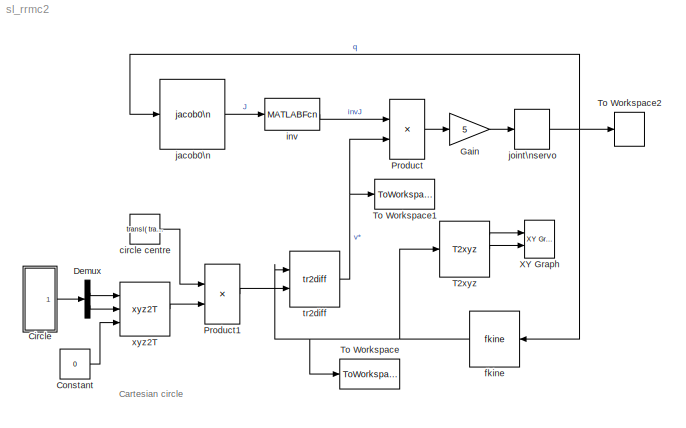
MODEL sl_rrmc2
KIND model
CONFIG PreLoadFcn = fprintf('*** Loading Puma560 model to workspace\\n');\nmdl_puma560
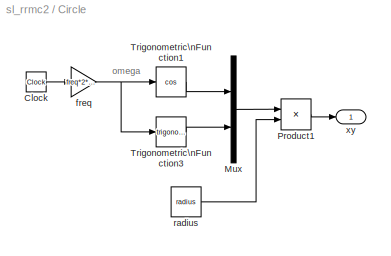
BLOCK [SubSystem] Circle
  FunctionWithSeparateData = off
  MaskCallbackString = |
  MaskEnableString = on,on
  MaskHideContents = off
  MaskIconFrame = on
  MaskIconOpaque = on
  MaskIconRotate = none
  MaskIconUnits = autoscale
  MaskPortRotate = default
  MaskPromptString = Radius|Frequency (rev/s)
  MaskStyleString = edit,edit
  MaskToolTipString = on,on
  MaskTunableValueString = on,on
  MaskValueString = 0.05|0.2
  MaskVariables = radius=@1;freq=@2;
  MaskVisibilityString = on,on
  MinAlgLoopOccurrences = off
  Opaque = off
  Ports = [0, 1]
  PropExecContextOutsideSubsystem = off
  RTWSystemCode = Auto
  RequestExecContextInheritance = off
  SID = 1
BLOCK [Clock] Circle/Clock
  Decimation = 10
  SID = 2
BLOCK [Mux] Circle/Mux
  DisplayOption = bar
  Inputs = 2
  Ports = [2, 1]
  SID = 3
BLOCK [Product] Circle/Product1
  InputSameDT = off
  Multiplication = Matrix(*)
  OutDataTypeStr = Inherit: Inherit via internal rule
  Ports = [2, 1]
  SID = 4
  SaturateOnIntegerOverflow = off
BLOCK [Trigonometry] Circle/Trigonometric\nFunction1
  Operator = cos
  Ports = [1, 1]
  SID = 5
BLOCK [Trigonometry] Circle/Trigonometric\nFunction3
  Ports = [1, 1]
  SID = 6
BLOCK [Gain] Circle/freq
  Gain = freq*2*pi
  OutDataTypeStr = Inherit: Inherit via internal rule
  ParamDataTypeStr = Inherit: Inherit via internal rule
  SID = 7
  SaturateOnIntegerOverflow = off
BLOCK [Constant] Circle/radius
  SID = 8
  Value = radius
BLOCK [Outport] Circle/xy
  IconDisplay = Port number
  SID = 9
BLOCK [Constant] Constant
  SID = 10
  Value = 0
BLOCK [Demux] Demux
  DisplayOption = bar
  Outputs = 2
  Ports = [1, 2]
  SID = 11
BLOCK [Gain] Gain
  Gain = 5
  SID = 13
BLOCK [Product] Product
  Multiplication = Matrix(*)
  Ports = [2, 1]
  SID = 14
BLOCK [Product] Product1
  Multiplication = Matrix(*)
  Ports = [2, 1]
  SID = 23
BLOCK [Reference] T2xyz  REF=roblocks/Transform Conversion/T2xyz  (lib defined in mdl_2a292b13c81b, mdl_69400f8cfe22, +12 more)
  FunctionWithSeparateData = off
  GeneratePreprocessorConditionals = off
  Ports = [1, 3]
  RTWMemSecDataConstants = Inherit from model
  RTWMemSecDataInternal = Inherit from model
  RTWMemSecDataParameters = Inherit from model
  RTWMemSecFuncExecute = Inherit from model
  RTWMemSecFuncInitTerm = Inherit from model
  SID = 15
  ShowPortLabels = FromPortIcon
  SourceBlock = roblocks/Transform Conversion/T2xyz
  SystemSampleTime = -1
BLOCK [ToWorkspace] To Workspace
  MaxDataPoints = inf
  Ports = [1]
  SID = 25
  SampleTime = -1
  SaveFormat = Array
  VariableName = T
BLOCK [ToWorkspace] To Workspace1
  MaxDataPoints = inf
  Ports = [1]
  SID = 28
  SampleTime = -1
  SaveFormat = Array
  VariableName = v
BLOCK [ToWorkspace] To Workspace2
  MaxDataPoints = inf
  Ports = [1]
  SID = 29
  SampleTime = -1
  SaveFormat = Array
  VariableName = q
BLOCK [Reference] XY Graph  REF=simulink/Sinks/XY Graph
  FunctionWithSeparateData = off
  GeneratePreprocessorConditionals = off
  Ports = [2]
  RTWMemSecDataConstants = Inherit from model
  RTWMemSecDataInternal = Inherit from model
  RTWMemSecDataParameters = Inherit from model
  RTWMemSecFuncExecute = Inherit from model
  RTWMemSecFuncInitTerm = Inherit from model
  SID = 16
  ShowPortLabels = FromPortIcon
  SourceBlock = simulink/Sinks/XY Graph
  SourceType = XY scope.
  SystemSampleTime = -1
  st = -1
  xmax = 0.7
  xmin = 0.5
  ymax = -0.05
  ymin = -0.25
BLOCK [Constant] circle centre
  SID = 24
  Value = transl( transl(p560.fkine(qn)) )
BLOCK [Reference] fkine  REF=roblocks/Kinematics/fkine  (lib defined in mdl_2a292b13c81b, mdl_69400f8cfe22, +12 more)
  FunctionWithSeparateData = off
  GeneratePreprocessorConditionals = off
  Ports = [1, 1]
  RTWMemSecDataConstants = Inherit from model
  RTWMemSecDataInternal = Inherit from model
  RTWMemSecDataParameters = Inherit from model
  RTWMemSecFuncExecute = Inherit from model
  RTWMemSecFuncInitTerm = Inherit from model
  SID = 17
  ShowPortLabels = FromPortIcon
  SourceBlock = roblocks/Kinematics/fkine
  SystemSampleTime = -1
  robot = p560
BLOCK [MATLABFcn] inv
  MATLABFcn = inv
  Output1D = off
  Ports = [1, 1]
  SID = 26
BLOCK [Reference] jacob0\n  REF=roblocks/Kinematics/jacob0\n  (lib defined in mdl_2a292b13c81b, mdl_69400f8cfe22, +12 more)
  FunctionWithSeparateData = off
  GeneratePreprocessorConditionals = off
  Ports = [1, 1]
  RTWMemSecDataConstants = Inherit from model
  RTWMemSecDataInternal = Inherit from model
  RTWMemSecDataParameters = Inherit from model
  RTWMemSecFuncExecute = Inherit from model
  RTWMemSecFuncInitTerm = Inherit from model
  SID = 19
  ShowPortLabels = FromPortIcon
  SourceBlock = roblocks/Kinematics/jacob0\n
  SystemSampleTime = -1
  robot = p560
BLOCK [DiscreteIntegrator] joint\nservo
  ExternalReset = none
  ICPrevOutput = DiscIntNeverNeededParam
  ICPrevScaledInput = DiscIntNeverNeededParam
  InitialCondition = qn'
  InitialConditionSource = internal
  IntegratorMethod = Integration: Forward Euler
  Ports = [1, 1]
  SID = 12
  SampleTime = 0.05
BLOCK [Reference] tr2diff  REF=roblocks/Kinematics/tr2diff  (lib defined in mdl_2a292b13c81b, mdl_69400f8cfe22, +12 more)
  FunctionWithSeparateData = off
  GeneratePreprocessorConditionals = off
  Ports = [2, 1]
  RTWMemSecDataConstants = Inherit from model
  RTWMemSecDataInternal = Inherit from model
  RTWMemSecDataParameters = Inherit from model
  RTWMemSecFuncExecute = Inherit from model
  RTWMemSecFuncInitTerm = Inherit from model
  SID = 21
  ShowPortLabels = FromPortIcon
  SourceBlock = roblocks/Kinematics/tr2diff
  SystemSampleTime = -1
  robot = p560
BLOCK [Reference] xyz2T  REF=roblocks/Transform Conversion/xyz2T  (lib defined in mdl_2a292b13c81b, mdl_69400f8cfe22, +12 more)
  FunctionWithSeparateData = off
  GeneratePreprocessorConditionals = off
  Ports = [3, 1]
  RTWMemSecDataConstants = Inherit from model
  RTWMemSecDataInternal = Inherit from model
  RTWMemSecDataParameters = Inherit from model
  RTWMemSecFuncExecute = Inherit from model
  RTWMemSecFuncInitTerm = Inherit from model
  SID = 22
  ShowPortLabels = FromPortIcon
  SourceBlock = roblocks/Transform Conversion/xyz2T
  SystemSampleTime = -1
ANNOTATION (root): Cartesian circle
ANNOTATION Circle: omega
LINE Circle/Clock:1 -> Circle/freq:1
LINE Circle/Mux:1 -> Circle/Product1:1
LINE Circle/Product1:1 -> Circle/xy:1
LINE Circle/Trigonometric\nFunction1:1 -> Circle/Mux:1
LINE Circle/Trigonometric\nFunction3:1 -> Circle/Mux:2
NET Circle/freq:1 -> Circle/Trigonometric\nFunction1:1, Circle/Trigonometric\nFunction3:1
LINE Circle/radius:1 -> Circle/Product1:2
LINE Circle:1 -> Demux:1
LINE Constant:1 -> xyz2T:3
LINE Demux:1 -> xyz2T:1
LINE Demux:2 -> xyz2T:2
LINE Gain:1 -> joint\nservo:1
LINE Product1:1 -> tr2diff:2
LINE Product:1 -> Gain:1
LINE T2xyz:1 -> XY Graph:1
LINE T2xyz:2 -> XY Graph:2
LINE circle centre:1 -> Product1:1
NET fkine:1 -> T2xyz:1, To Workspace:1, tr2diff:1
LINE inv:1 -> Product:1
LINE jacob0\n:1 -> inv:1
NET joint\nservo:1 -> To Workspace2:1, fkine:1, jacob0\n:1
NET tr2diff:1 -> Product:2, To Workspace1:1
LINE xyz2T:1 -> Product1:2
note: NET lines group one-source signal fan-out (src -> all destinations, sorted); 1:1 wires keep LINE
